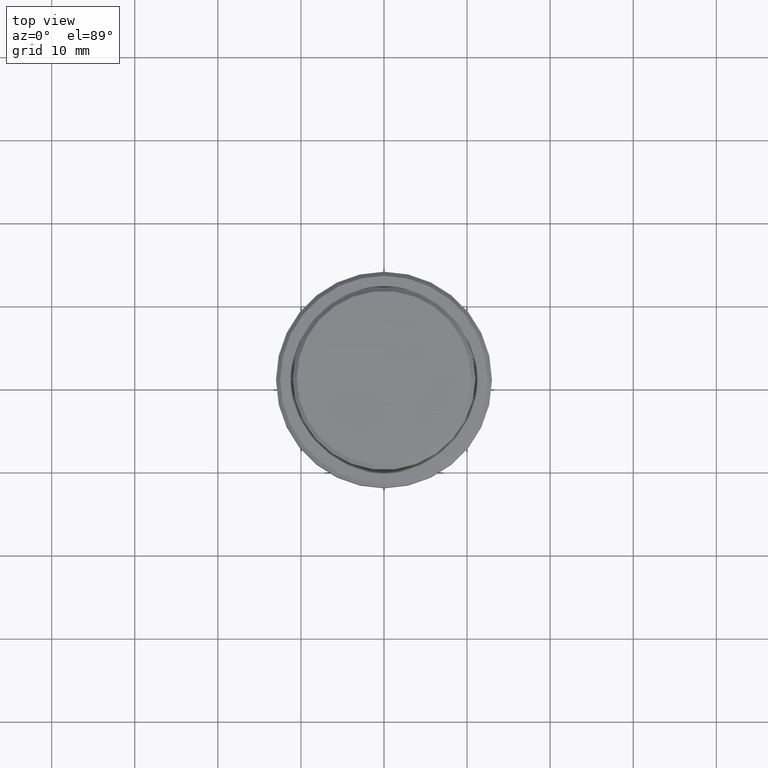
[diagram: clean part render]
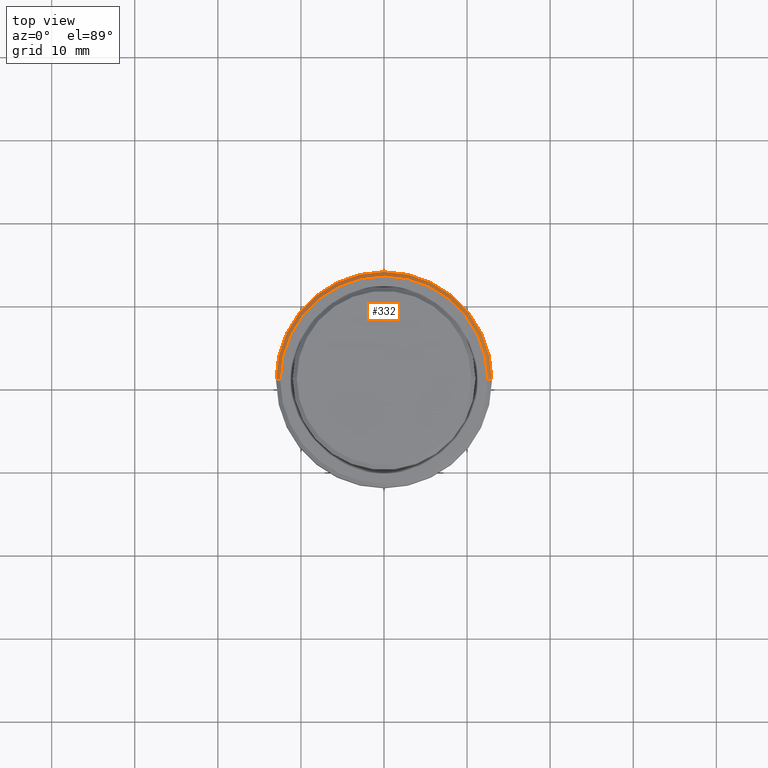
[diagram: same view with one face highlighted and labeled with its STEP entity id]
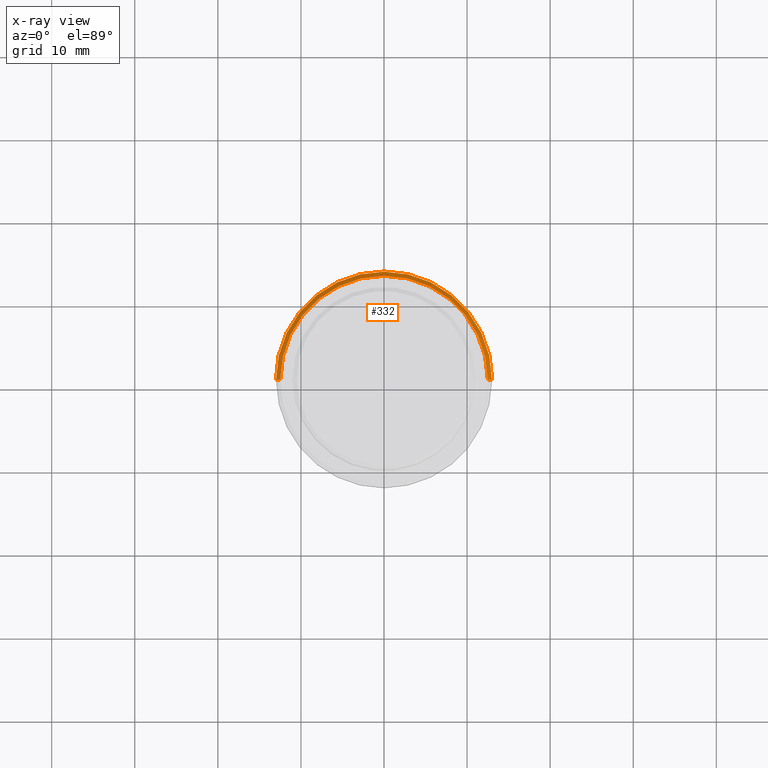
[diagram: x-ray of the same camera — body ghosted, the highlighted face saturated]
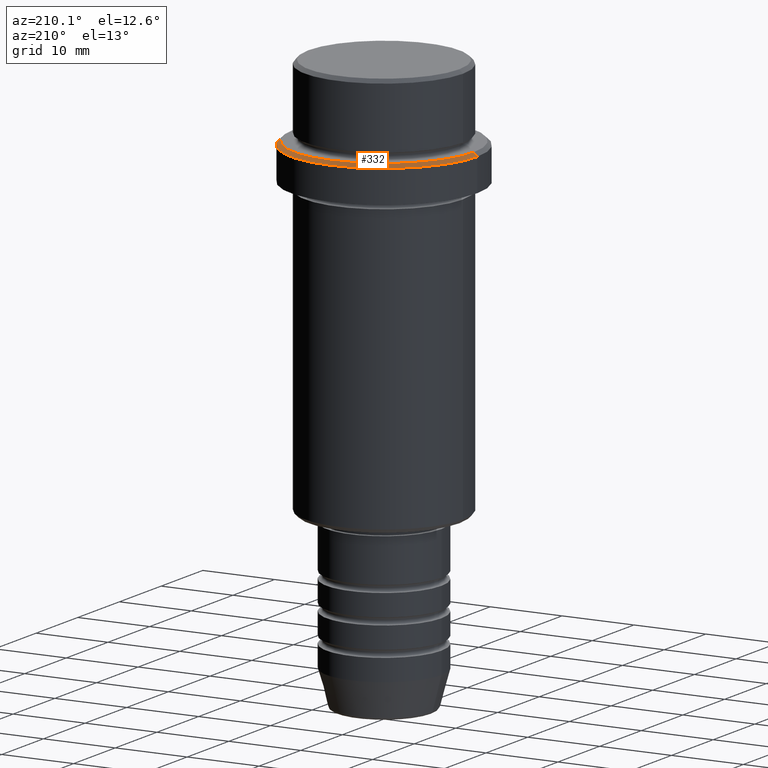
[diagram: same view with one face highlighted and labeled with its STEP entity id]
A machine part, top view. The second image highlights one B-rep face of the part: STEP entity #332.
The next image is the same camera in x-ray: the body ghosted, the highlighted face saturated — about 0% of this face is hidden behind the body in this view.
A second angle (auxiliary view) of the same face is appended — the face is thin or edge-on in the first view.
In plain terms, the highlighted conical surface has half-angle 45 deg.
Its self-contained STEP definition (entity closure, byte-faithful):
#37 = CARTESIAN_POINT ( 'NONE',  ( -12.49999999999998401, 0.000000000000000000, -10.00000000000000000 ) ) ;
#94 = VECTOR ( 'NONE', #1350, 1000.000000000000000 ) ;
#109 = VERTEX_POINT ( 'NONE', #463 ) ;
#157 = CARTESIAN_POINT ( 'NONE',  ( 0.000000000000000000, 0.000000000000000000, -10.00000000000000000 ) ) ;
#202 = CARTESIAN_POINT ( 'NONE',  ( 0.000000000000000000, 0.000000000000000000, -10.50000000000000711 ) ) ;
#227 = DIRECTION ( 'NONE',  ( 1.000000000000000000, 0.000000000000000000, 0.000000000000000000 ) ) ;
#233 = AXIS2_PLACEMENT_3D ( 'NONE', #157, #836, #952 ) ;
#236 = DIRECTION ( 'NONE',  ( -0.000000000000000000, -0.000000000000000000, 1.000000000000000000 ) ) ;
#250 = EDGE_CURVE ( 'NONE', #1400, #1268, #1360, .T. ) ;
#332 = ADVANCED_FACE ( 'NONE', ( #719 ), #848, .T. ) ;
#338 = CARTESIAN_POINT ( 'NONE',  ( 0.000000000000000000, 0.000000000000000000, -10.00000000000000000 ) ) ;
#445 = CIRCLE ( 'NONE', #1027, 12.49999999999998401 ) ;
#463 = CARTESIAN_POINT ( 'NONE',  ( 12.49999999999998401, 1.561424668912874125E-15, -10.00000000000000000 ) ) ;
#543 = ORIENTED_EDGE ( 'NONE', *, *, #250, .F. ) ;
#665 = CARTESIAN_POINT ( 'NONE',  ( 12.49999999999998401, 1.530808498934189549E-15, -10.00000000000000000 ) ) ;
#719 = FACE_OUTER_BOUND ( 'NONE', #807, .T. ) ;
#807 = EDGE_LOOP ( 'NONE', ( #991, #932, #543, #821 ) ) ;
#821 = ORIENTED_EDGE ( 'NONE', *, *, #1179, .F. ) ;
#825 = AXIS2_PLACEMENT_3D ( 'NONE', #202, #988, #1404 ) ;
#836 = DIRECTION ( 'NONE',  ( 0.000000000000000000, 0.000000000000000000, -1.000000000000000000 ) ) ;
#848 = CONICAL_SURFACE ( 'NONE', #233, 12.49999999999998401, 0.7853981633974570498 ) ;
#871 = VECTOR ( 'NONE', #879, 1000.000000000000000 ) ;
#879 = DIRECTION ( 'NONE',  ( -0.7071067811865536790, 0.000000000000000000, -0.7071067811865414665 ) ) ;
#889 = VERTEX_POINT ( 'NONE', #37 ) ;
#932 = ORIENTED_EDGE ( 'NONE', *, *, #1213, .T. ) ;
#952 = DIRECTION ( 'NONE',  ( -1.000000000000000000, 0.000000000000000000, 0.000000000000000000 ) ) ;
#988 = DIRECTION ( 'NONE',  ( 0.000000000000000000, 0.000000000000000000, -1.000000000000000000 ) ) ;
#991 = ORIENTED_EDGE ( 'NONE', *, *, #1263, .F. ) ;
#994 = LINE ( 'NONE', #665, #94 ) ;
#1027 = AXIS2_PLACEMENT_3D ( 'NONE', #338, #236, #227 ) ;
#1179 = EDGE_CURVE ( 'NONE', #889, #1400, #1414, .T. ) ;
#1208 = CARTESIAN_POINT ( 'NONE',  ( -12.49999999999998401, 0.000000000000000000, -10.00000000000000000 ) ) ;
#1213 = EDGE_CURVE ( 'NONE', #109, #1268, #994, .T. ) ;
#1258 = CARTESIAN_POINT ( 'NONE',  ( 13.00000000000000000, 0.000000000000000000, -10.50000000000000711 ) ) ;
#1263 = EDGE_CURVE ( 'NONE', #109, #889, #445, .T. ) ;
#1268 = VERTEX_POINT ( 'NONE', #1258 ) ;
#1332 = CARTESIAN_POINT ( 'NONE',  ( -13.00000000000000000, 1.592040838891559095E-15, -10.50000000000000711 ) ) ;
#1350 = DIRECTION ( 'NONE',  ( 0.7071067811865536790, 8.659560562355008046E-17, -0.7071067811865414665 ) ) ;
#1360 = CIRCLE ( 'NONE', #825, 13.00000000000000000 ) ;
#1400 = VERTEX_POINT ( 'NONE', #1332 ) ;
#1404 = DIRECTION ( 'NONE',  ( 1.000000000000000000, 0.000000000000000000, 0.000000000000000000 ) ) ;
#1414 = LINE ( 'NONE', #1208, #871 ) ;